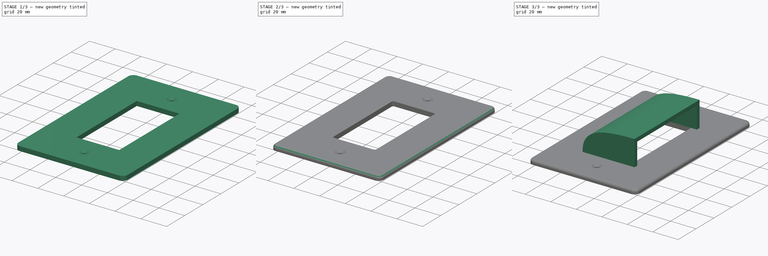
[diagram: build sequence overview — one tinted view per stage of 3, left to right]
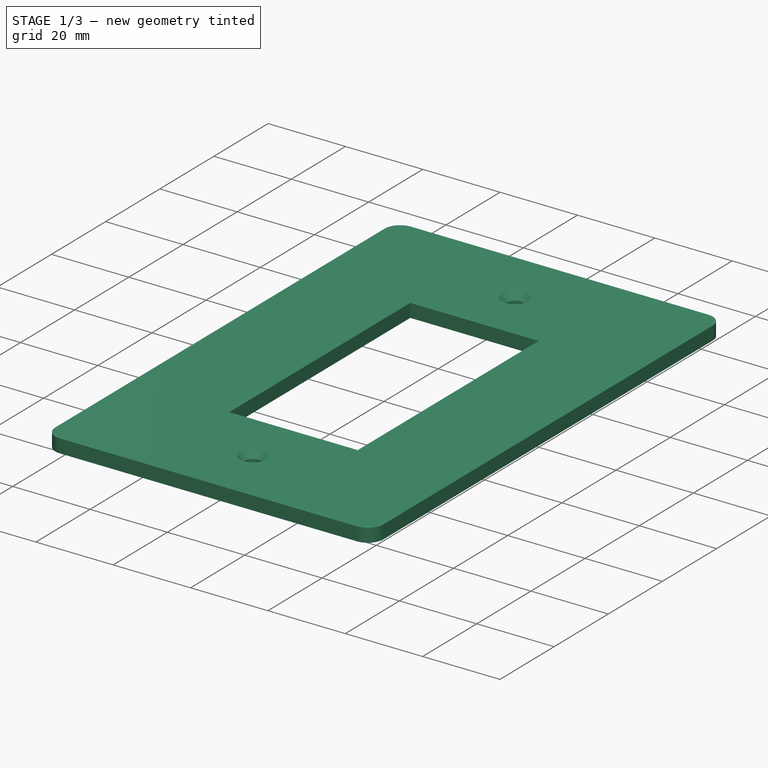
[diagram: stage 1 of 3 — iso view after this stage's code; geometry added in this stage tinted green]
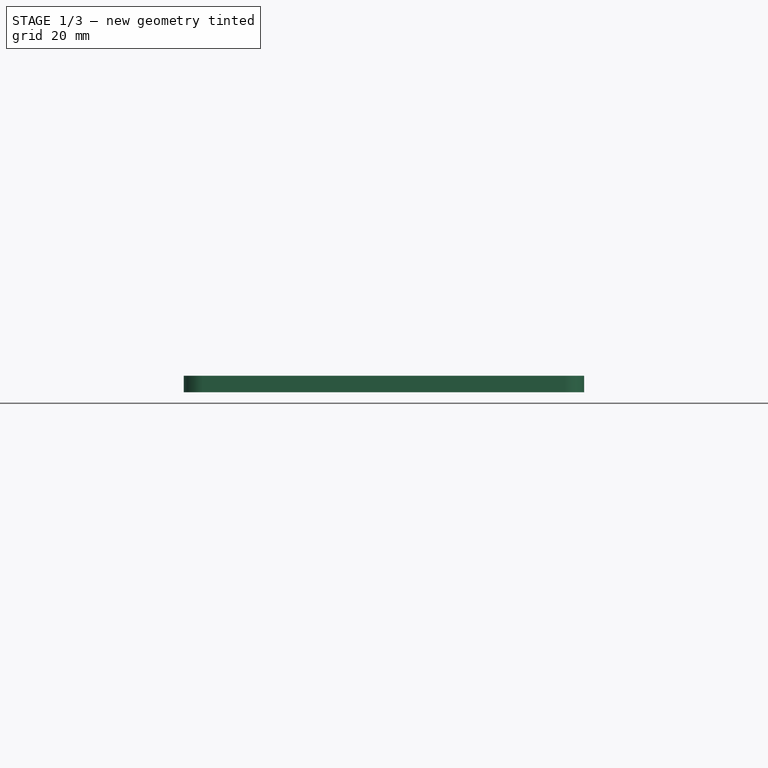
[diagram: stage 1 of 3 — front view after this stage's code; geometry added in this stage tinted green]
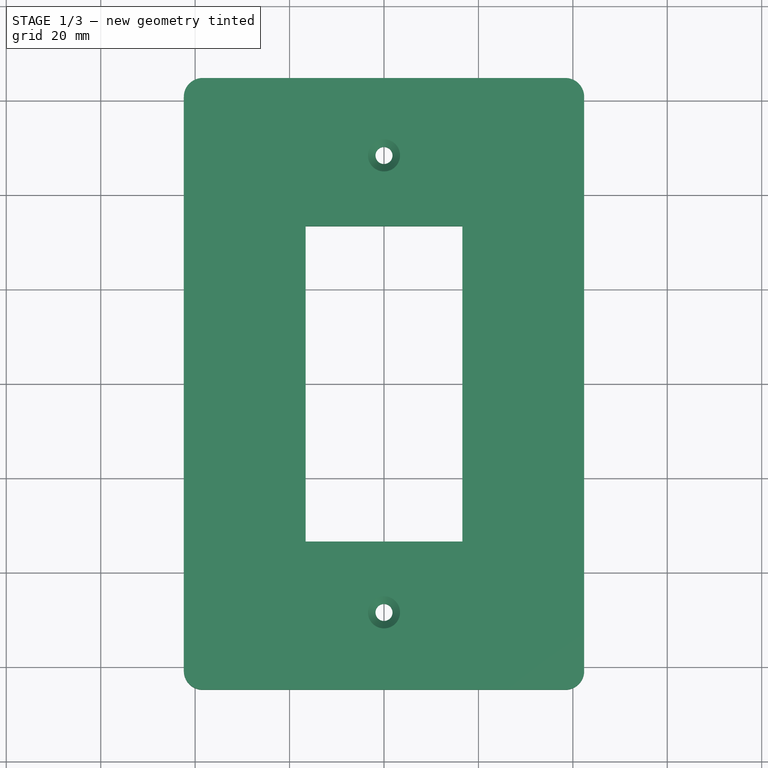
[diagram: stage 1 of 3 — top view after this stage's code; geometry added in this stage tinted green]
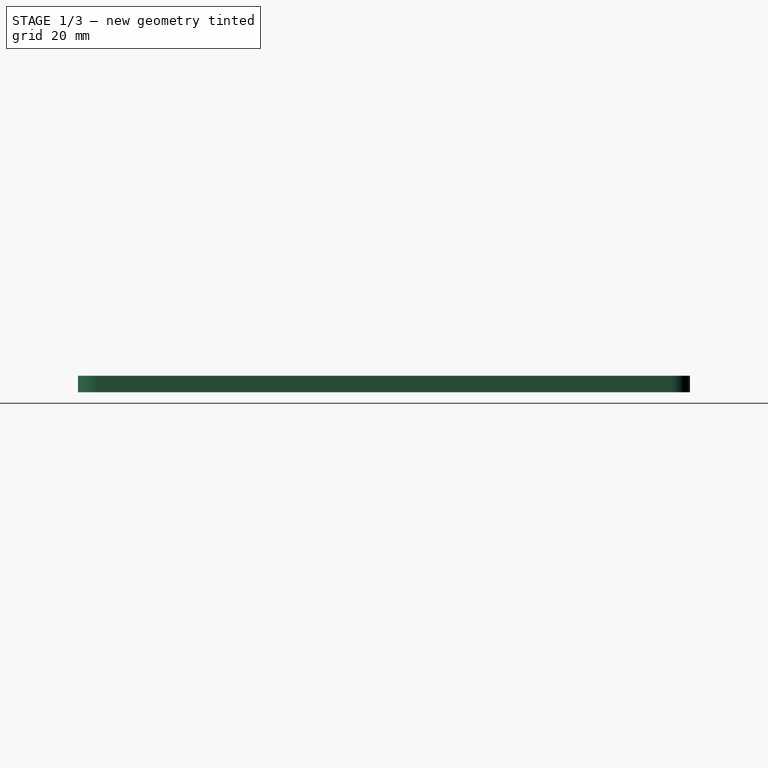
[diagram: stage 1 of 3 — right view after this stage's code; geometry added in this stage tinted green]
FCSTD DOCUMENT  (FreeCAD 0.20RUnknown)
Label: baby-safe-light-switch
License: All rights reserved
LicenseURL: http://en.wikipedia.org/wiki/All_rights_reserved
objects: Sketcher::SketchObject×4, PartDesign::Fillet×3, PartDesign::Pad×2, PartDesign::Pocket×2, PartDesign::Chamfer×1, PartDesign::Body×1
note: 21 computed .brp shape members not serialized (recipe doc carries the construction recipe); baked Part::Feature solids carry a one-line shape summary decoded from their .brp

FEATURE [Sketcher::SketchObject] Sketch  label="Base Plate Body Sketch"
  FullyConstrained = true
  MapMode = 5
  Support = -> [XY_Plane]
  sketch-geometry (10):
    g0: LineSegment StartX=-42.4 StartY=64.8 StartZ=0 EndX=42.4 EndY=64.8 EndZ=0
    g1: LineSegment StartX=42.4 StartY=64.8 StartZ=0 EndX=42.4 EndY=-64.8 EndZ=0
    g2: LineSegment StartX=42.4 StartY=-64.8 StartZ=0 EndX=-42.4 EndY=-64.8 EndZ=0
    g3: LineSegment StartX=-42.4 StartY=-64.8 StartZ=0 EndX=-42.4 EndY=64.8 EndZ=0
    g4: LineSegment StartX=-16.6 StartY=33.4 StartZ=0 EndX=16.6 EndY=33.4 EndZ=0
    g5: LineSegment StartX=16.6 StartY=33.4 StartZ=0 EndX=16.6 EndY=-33.4 EndZ=0
    g6: LineSegment StartX=16.6 StartY=-33.4 StartZ=0 EndX=-16.6 EndY=-33.4 EndZ=0
    g7: LineSegment StartX=-16.6 StartY=-33.4 StartZ=0 EndX=-16.6 EndY=33.4 EndZ=0
    g8: Circle CenterX=0 CenterY=48.4 CenterZ=0 NormalX=0 NormalY=0 NormalZ=1 AngleXU=0 Radius=1.8
    g9: Circle CenterX=0 CenterY=-48.4 CenterZ=0 NormalX=0 NormalY=0 NormalZ=1 AngleXU=0 Radius=1.8
  constraints (27):
    c: Coincident(g0,g1)
    c: Coincident(g1,g2)
    c: Coincident(g2,g3)
    c: Coincident(g3,g0)
    c: Horizontal(g0)
    c: Horizontal(g2)
    c: Vertical(g1)
    c: Vertical(g3)
    c: Coincident(g4,g5)
    c: Coincident(g5,g6)
    c: Coincident(g6,g7)
    c: Coincident(g7,g4)
    c: Horizontal(g4)
    c: Horizontal(g6)
    c: Vertical(g5)
    c: Vertical(g7)
    c: DistanceX(g4,g4) = 33.2
    c: DistanceY(g5,g5) = 66.8
    c: DistanceY(g1,g1) = 129.6
    c: DistanceX(g0,g0) = 84.8
    c: Symmetric(g4,g5,g-1)
    c: Symmetric(g0,g1,g-1)
    c: Diameter(g8) = 3.6
    c: Equal(g8,g9)
    c: DistanceY(g9,g8) = 96.8
    c: PointOnObject(g8,g-2)
    c: Symmetric(g8,g9,g-1)
FEATURE [PartDesign::Pad] Pad  label="Base Plate Body Pad"
  Direction = (0,0,1)
  Length = 3.5
  Length2 = 10
  Profile = -> Sketch
  ReferenceAxis = -> Sketch [N_Axis]
  Type = 0
FEATURE [PartDesign::Chamfer] Chamfer  label="Base Plate Screw Chamfer"
  Angle = 45
  Base = -> Pad [Edge27,Edge30]
  BaseFeature = -> Pad
  ChamferType = 0
  FlipDirection = false
  Size = 1.6
  Size2 = 1
  SupportTransform = false
  UseAllEdges = false
FEATURE [PartDesign::Fillet] Fillet  label="Base Plate Outer Fillet"
  Base = -> Chamfer [Edge25,Edge24,Edge26,Edge27]
  BaseFeature = -> Chamfer
  Radius = 4
  SupportTransform = false
  UseAllEdges = false
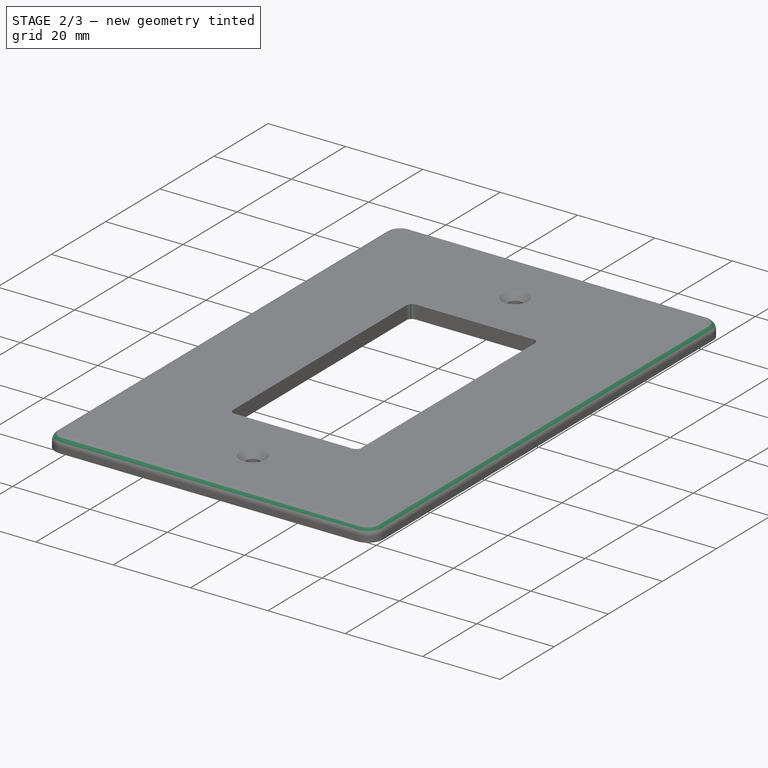
[diagram: stage 2 of 3 — iso view after this stage's code; geometry added in this stage tinted green]
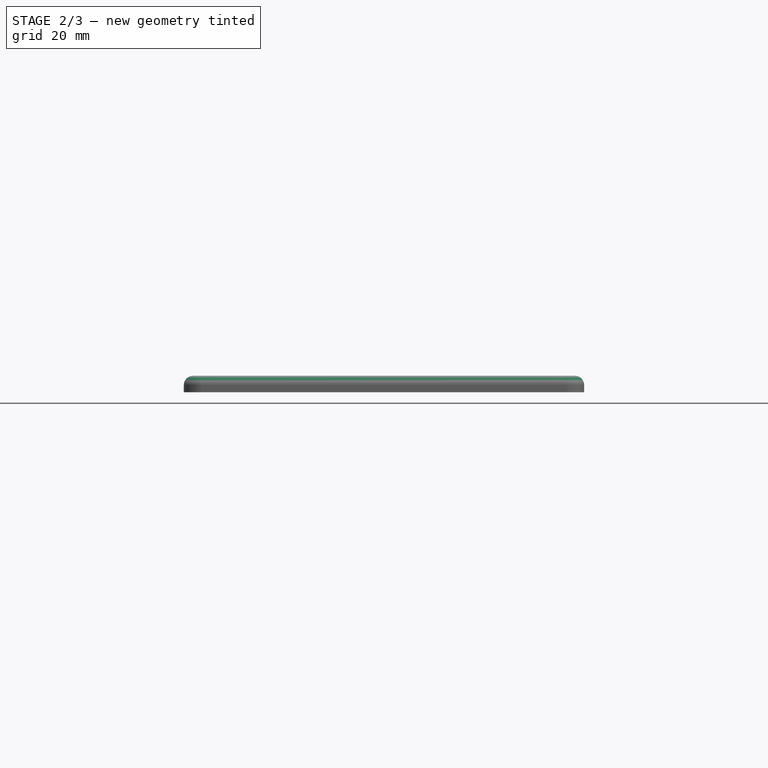
[diagram: stage 2 of 3 — front view after this stage's code; geometry added in this stage tinted green]
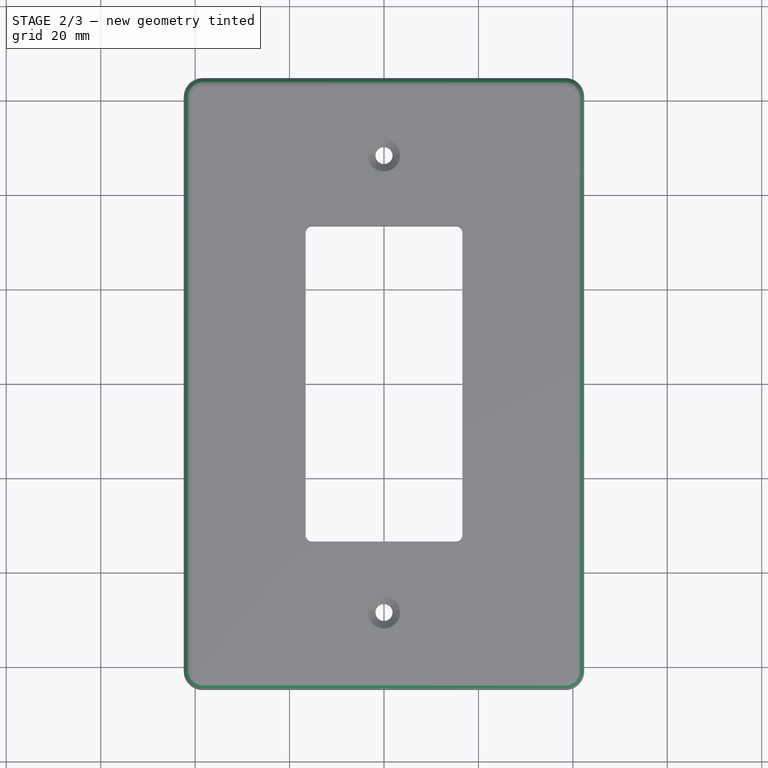
[diagram: stage 2 of 3 — top view after this stage's code; geometry added in this stage tinted green]
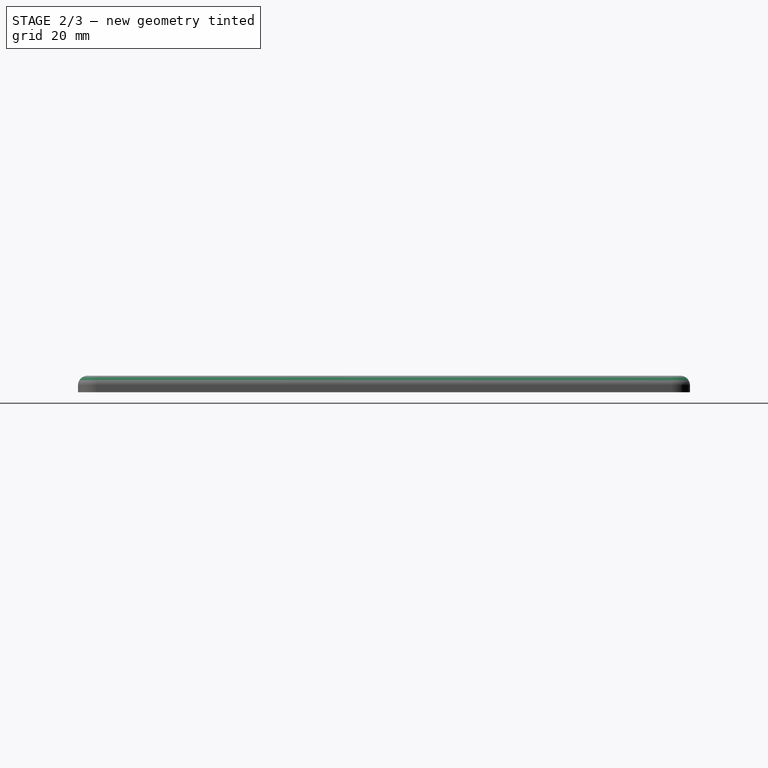
[diagram: stage 2 of 3 — right view after this stage's code; geometry added in this stage tinted green]
FEATURE [PartDesign::Fillet] Fillet001  label="Base Plate Face Fillet"
  Base = -> Fillet [Edge27,Edge30,Edge29,Edge25,Edge21,Edge17,Edge19,Edge23]
  BaseFeature = -> Fillet
  Radius = 2
  SupportTransform = false
  UseAllEdges = false
FEATURE [PartDesign::Fillet] Fillet002  label="Base Plate Inner Fillet"
  Base = -> Fillet001 [Edge52,Edge50,Edge51,Edge49]
  BaseFeature = -> Fillet001
  Radius = 1.4
  SupportTransform = false
  UseAllEdges = false
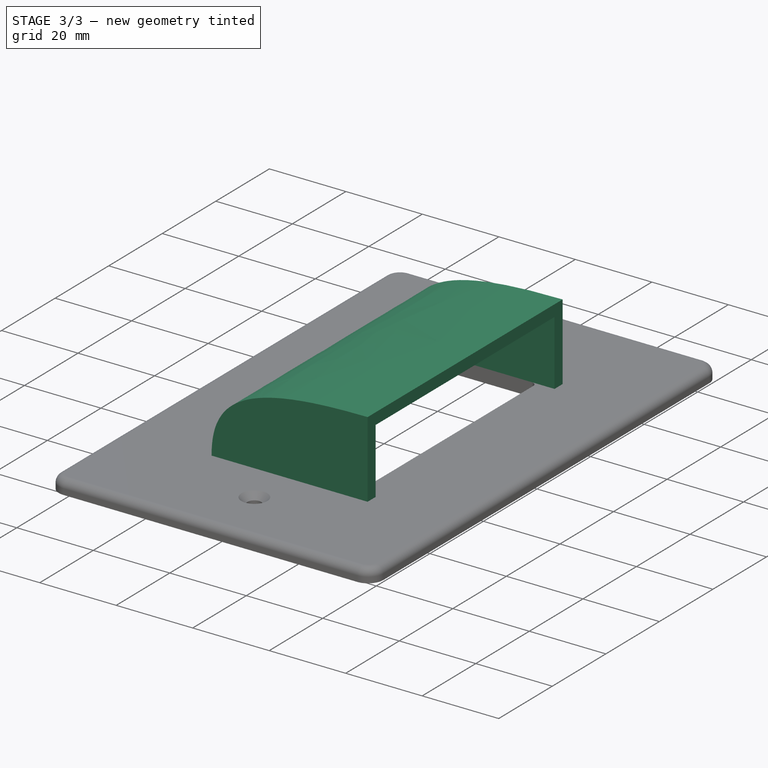
[diagram: stage 3 of 3 — iso view after this stage's code; geometry added in this stage tinted green]
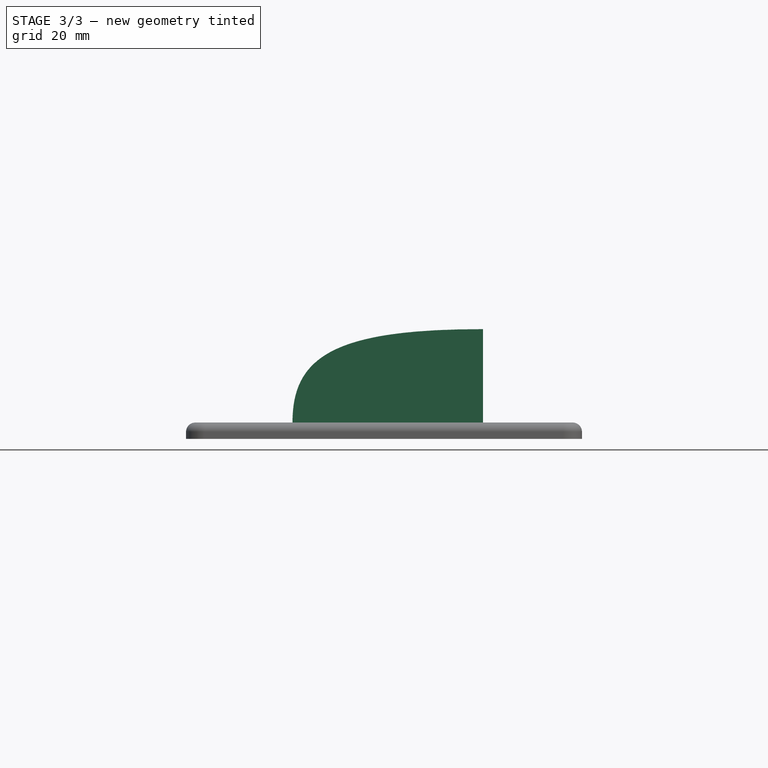
[diagram: stage 3 of 3 — front view after this stage's code; geometry added in this stage tinted green]
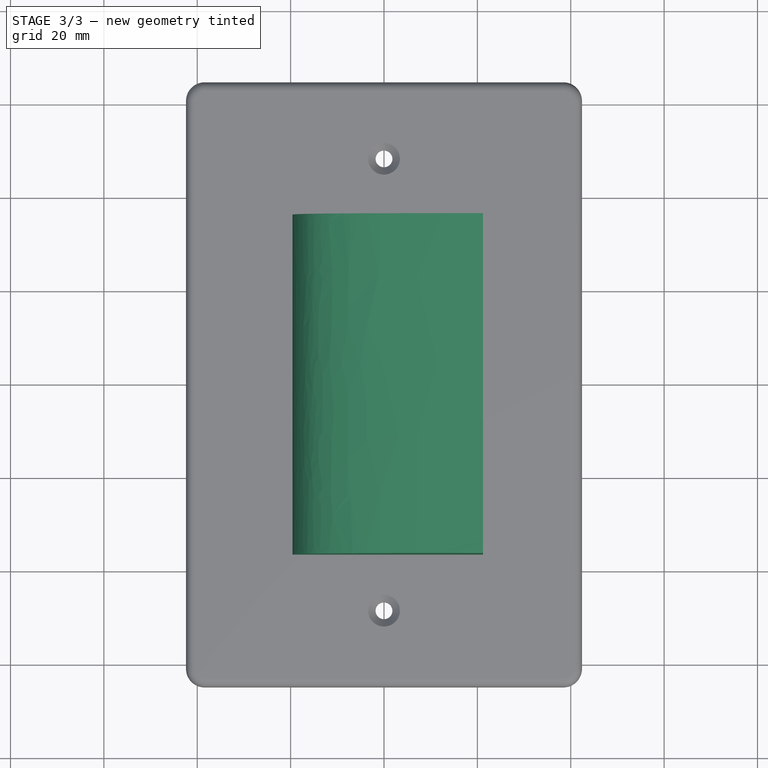
[diagram: stage 3 of 3 — top view after this stage's code; geometry added in this stage tinted green]
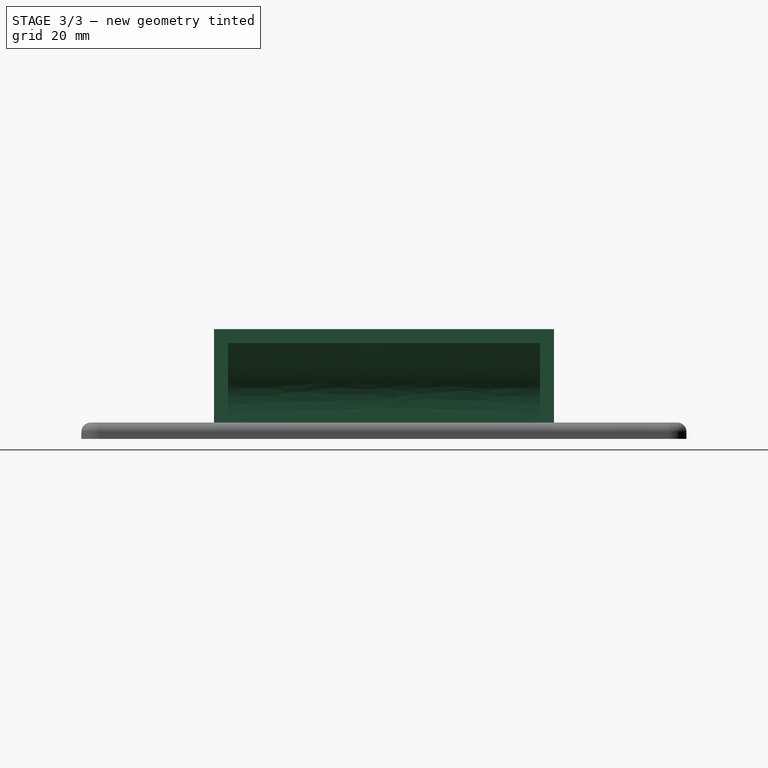
[diagram: stage 3 of 3 — right view after this stage's code; geometry added in this stage tinted green]
FEATURE [Sketcher::SketchObject] Sketch001  label="Base Plate Cover Base Sketch"
  ExternalGeometry = -> [Fillet002]
  FullyConstrained = true
  MapMode = 5
  Placement = pos=(0,0,3.5) rot=(0,0,1;0rad)
  Support = -> [Fillet002]
  sketch-geometry (9):
    g0: LineSegment StartX=21.2 StartY=36.4 StartZ=0 EndX=-19.6 EndY=36.4 EndZ=0
    g1: LineSegment StartX=-19.6 StartY=36.4 StartZ=0 EndX=-19.6 EndY=-36.4 EndZ=0
    g2: LineSegment StartX=-19.6 StartY=-36.4 StartZ=0 EndX=21.2 EndY=-36.4 EndZ=0
    g3: LineSegment StartX=15.2 StartY=33.4 StartZ=0 EndX=21.2 EndY=33.4 EndZ=0
    g4: LineSegment StartX=15.2 StartY=-33.4 StartZ=0 EndX=21.2 EndY=-33.4 EndZ=0
    g5: LineSegment StartX=21.2 StartY=33.4 StartZ=0 EndX=21.2 EndY=-33.4 EndZ=0
    g6: LineSegment StartX=21.2 StartY=33.4 StartZ=0 EndX=21.2 EndY=36.4 EndZ=0
    g7: LineSegment StartX=21.2 StartY=-36.4 StartZ=0 EndX=21.2 EndY=-33.4 EndZ=0
    g8: LineSegment StartX=-16.6 StartY=32 StartZ=0 EndX=-19.6 EndY=32 EndZ=0
  constraints (25):
    c: Horizontal(g0)
    c: Coincident(g1,g0)
    c: Vertical(g1)
    c: Coincident(g2,g1)
    c: Horizontal(g2)
    c: Horizontal(g3)
    c: Horizontal(g4)
    c: Coincident(g5,g3)
    c: Coincident(g5,g4)
    c: Vertical(g5)
    c: Coincident(g6,g3)
    c: Vertical(g6)
    c: Coincident(g0,g6)
    c: Coincident(g7,g2)
    c: Coincident(g7,g4)
    c: Vertical(g7)
    c: DistanceY(g7,g7) = 3
    c: PointOnObject(g8,g1)
    c: Horizontal(g8)
    c: Equal(g8,g6)
    c: Equal(g6,g7)
    c: DistanceX(g4,g4) = 6
    c: Coincident(g8,g-5)
    c: Coincident(g3,g-3)
    c: Coincident(g4,g-7)
FEATURE [PartDesign::Pad] Pad001  label="Base Plate Cover Base Pad"
  BaseFeature = -> Fillet002
  Direction = (0,0,1)
  Length = 20
  Length2 = 10
  Profile = -> Sketch001
  ReferenceAxis = -> Sketch001 [N_Axis]
  Type = 0
FEATURE [Sketcher::SketchObject] Sketch002  label="Base Plate Cover Curve Cut Sketch"
  ExternalGeometry = -> [Pad001]
  FullyConstrained = false
  MapMode = 5
  Placement = pos=(0,-36.4,0) rot=(1,0,0;1.5708rad)
  Support = -> [Pad001]
  sketch-geometry (13):
    g0: LineSegment StartX=21.2 StartY=20.5 StartZ=0 EndX=21.2 EndY=3.5 EndZ=0
    g1: LineSegment StartX=21.2 StartY=3.5 StartZ=0 EndX=-16.6 EndY=3.5 EndZ=0
    g2: LineSegment StartX=-16.6 StartY=3.5 StartZ=0 EndX=-16.6 EndY=20.5 EndZ=0
    g3: LineSegment StartX=-16.6 StartY=20.5 StartZ=0 EndX=21.2 EndY=20.5 EndZ=0
    g4: LineSegment StartX=21.2 StartY=20.5 StartZ=0 EndX=21.2 EndY=23.5 EndZ=0
    g5: LineSegment StartX=-16.6 StartY=3.5 StartZ=0 EndX=-19.6 EndY=3.5 EndZ=0
    g6-g9: Circle x4 (B-spline internal-alignment scaffolding for g10; pole/knot coordinates omitted)
    g10: BSplineCurve PolesCount=4 KnotsCount=2 Degree=3 IsPeriodic=0
    g11: GeomPoint X=-16.6 Y=3.5 Z=0
    g12: GeomPoint X=21.2 Y=20.5 Z=0
  constraints (26):
    c: PointOnObject(g0,g-5)
    c: Coincident(g0,g-5)
    c: Coincident(g1,g0)
    c: PointOnObject(g1,g-4)
    c: Coincident(g2,g1)
    c: Vertical(g2)
    c: Coincident(g3,g2)
    c: Coincident(g3,g0)
    c: Horizontal(g3)
    c: Coincident(g4,g0)
    c: Coincident(g4,g-6)
    c: Coincident(g5,g1)
    c: Coincident(g5,g-4)
    c: DistanceY(g4,g4) = 3
    c: Equal(g4,g5)
    c: Weight(g6) = 1
    c: Coincident(g10,g1)
    c: Equal(g6,g7)
    c: Equal(g6,g8)
    c: Equal(g6,g9)
    c: Coincident(g10,g0)
    c: InternalAlignment(g6-g9 -> g10) x4
    c: InternalAlignment(g11,g10)
    c: InternalAlignment(g12,g10)
    c: PointOnObject(g8,g3)
    c: PointOnObject(g7,g2)
FEATURE [PartDesign::Pocket] Pocket  label="Base Plate Cover Curve Cut"
  BaseFeature = -> Pad001
  Direction = (0,1,-2e-16)
  Length = 69.8
  Length2 = -3
  Profile = -> Sketch002
  ReferenceAxis = -> Sketch002 [N_Axis]
  Type = 4
FEATURE [Sketcher::SketchObject] Sketch003  label="Base Plate Cover Top Curve Cut Sketch"
  ExternalGeometry = -> [Pocket]
  FullyConstrained = false
  MapMode = 5
  Placement = pos=(0,-36.4,0) rot=(1,0,0;1.5708rad)
  Support = -> [Pocket]
  sketch-geometry (9):
    g0-g3: Circle x4 (B-spline internal-alignment scaffolding for g4; pole/knot coordinates omitted)
    g4: BSplineCurve PolesCount=4 KnotsCount=2 Degree=3 IsPeriodic=0
    g5: GeomPoint X=-19.6 Y=3.5 Z=0
    g6: GeomPoint X=21.2 Y=23.5 Z=0
    g7: LineSegment StartX=-19.6 StartY=3.5 StartZ=0 EndX=-19.6 EndY=23.5 EndZ=0
    g8: LineSegment StartX=-19.6 StartY=23.5 StartZ=0 EndX=21.2 EndY=23.5 EndZ=0
  constraints (15):
    c: Weight(g0) = 1
    c: Coincident(g4,g-5)
    c: Equal(g0,g1)
    c: Equal(g0,g2)
    c: Equal(g0,g3)
    c: Coincident(g4,g-4)
    c: InternalAlignment(g0-g3 -> g4) x4
    c: InternalAlignment(g5,g4)
    c: InternalAlignment(g6,g4)
    c: Coincident(g7,g4)
    c: Coincident(g7,g-5)
    c: Coincident(g8,g7)
    c: Coincident(g8,g4)
    c: PointOnObject(g1,g7)
    c: PointOnObject(g2,g8)
FEATURE [PartDesign::Pocket] Pocket001  label="Base Plate Cover Top Curve Cut"
  BaseFeature = -> Pocket
  Direction = (0,1,-2e-16)
  Length = 5
  Length2 = 5
  Profile = -> Sketch003
  ReferenceAxis = -> Sketch003 [N_Axis]
  Type = 1
FEATURE [PartDesign::Body] Body  label="Base Plate Body"
  Group = -> [Sketch,Pad,Chamfer,Fillet,Fillet001,Fillet002,Sketch001,Pad001,Sketch002,Pocket,Sketch003,Pocket001]
  Origin = -> Origin
  Tip = -> Pocket001
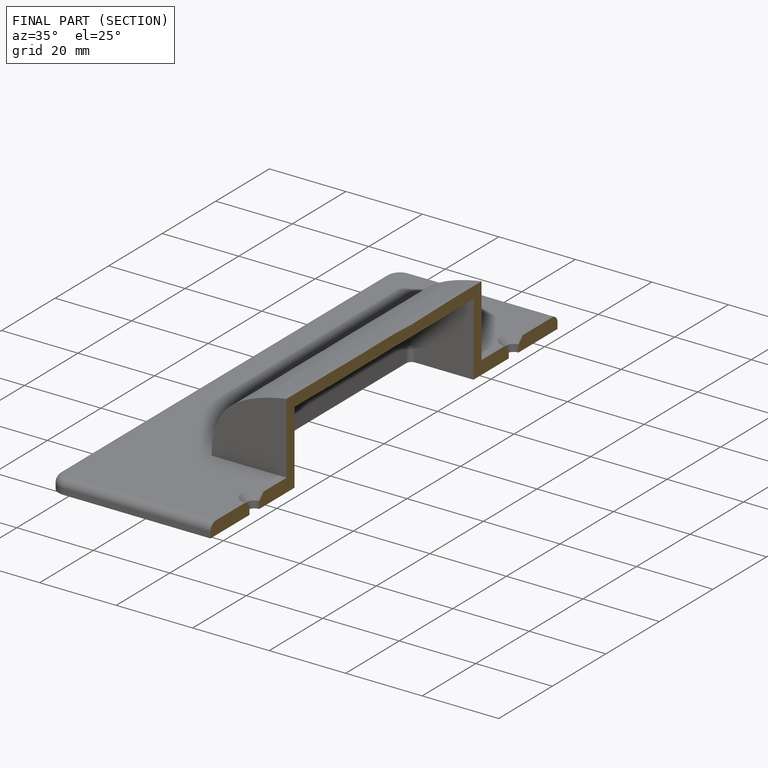
[diagram: finished part — half-section view (interior)]
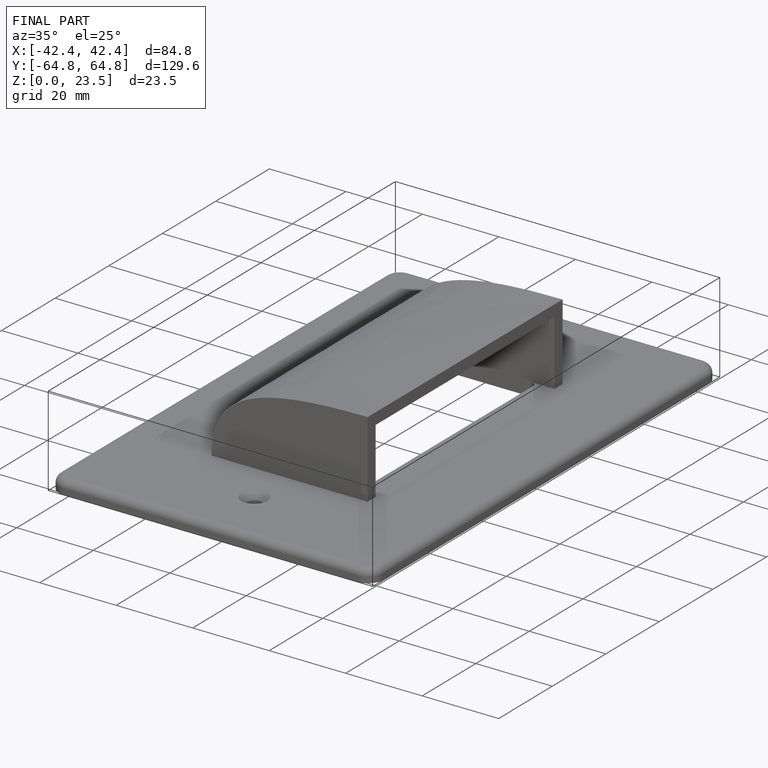
[diagram: finished part — iso view with bounding-box wireframe]
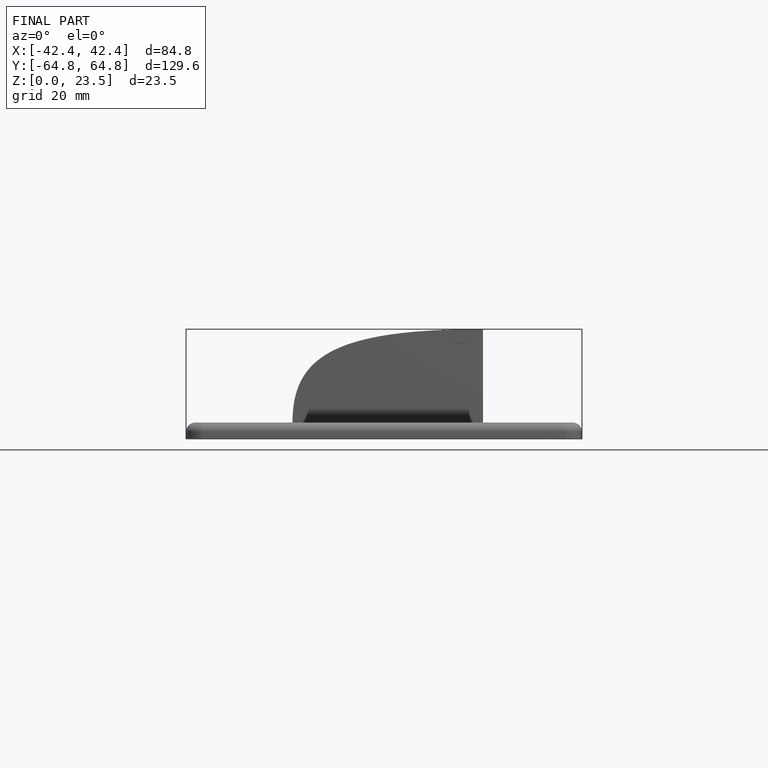
[diagram: finished part — front view with bounding-box wireframe]
